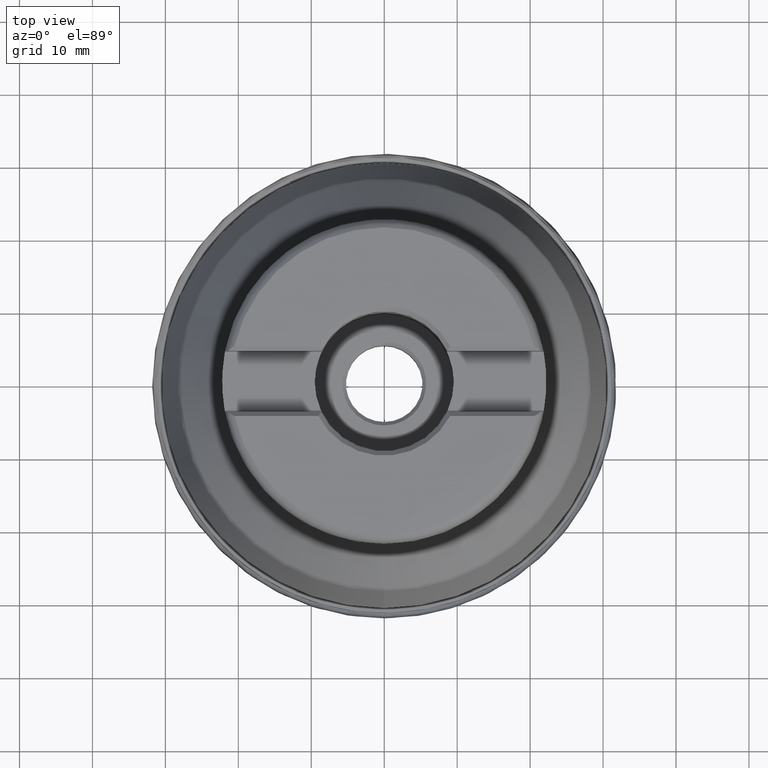
[diagram: clean part render]
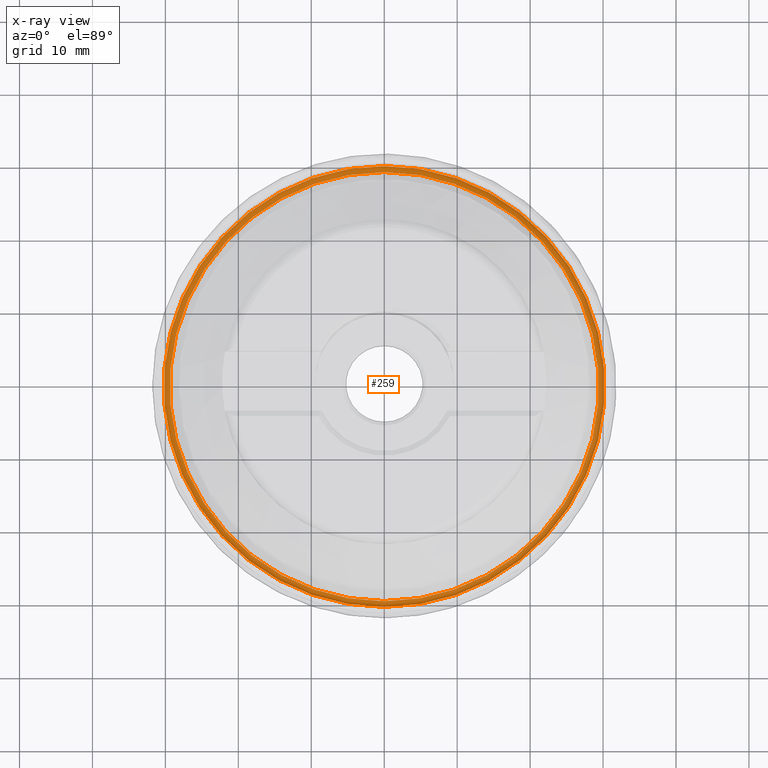
[diagram: x-ray — body ghosted, one internal face saturated and labeled with its STEP entity id]
A machine part, top view, then the same camera in x-ray: the body is ghosted and one INTERNAL B-rep face — a face not visible from any outside direction — is saturated and labeled: STEP entity #259.
In plain terms, the highlighted toroidal blend (fillet) surface has major radius 29.4166 mm and minor (blend) radius 0.8 mm.
Its self-contained STEP definition (entity closure, byte-faithful):
#191=TOROIDAL_SURFACE('',#1235,29.4166265666421,0.8);
#259=ADVANCED_FACE('',(#406,#407),#191,.T.);
#406=FACE_BOUND('',#524,.T.);
#407=FACE_BOUND('',#525,.T.);
#524=EDGE_LOOP('',(#734));
#525=EDGE_LOOP('',(#735));
#734=ORIENTED_EDGE('',*,*,#956,.F.);
#735=ORIENTED_EDGE('',*,*,#954,.F.);
#856=VERTEX_POINT('',#2019);
#858=VERTEX_POINT('',#2024);
#954=EDGE_CURVE('',#856,#856,#1050,.T.);
#956=EDGE_CURVE('',#858,#858,#1052,.T.);
#1050=CIRCLE('',#1180,29.4166265666421);
#1052=CIRCLE('',#1183,30.2160077481036);
#1180=AXIS2_PLACEMENT_3D('',#2018,#1327,#1328);
#1183=AXIS2_PLACEMENT_3D('',#2023,#1333,#1334);
#1235=AXIS2_PLACEMENT_3D('',#2234,#1453,#1454);
#1327=DIRECTION('',(0.,-1.17145536458252E-15,-1.));
#1328=DIRECTION('',(0.,1.,-1.17204564591835E-15));
#1333=DIRECTION('',(0.,1.17145536458252E-15,1.));
#1334=DIRECTION('',(0.,1.,-1.16974390255926E-15));
#1453=DIRECTION('',(0.,-1.17145536458252E-15,-1.));
#1454=DIRECTION('',(0.,1.,-1.16971994689992E-15));
#2018=CARTESIAN_POINT('',(0.,1.17145536458252E-15,1.));
#2019=CARTESIAN_POINT('',(0.,29.4166265666421,0.999999999999966));
#2023=CARTESIAN_POINT('',(0.,2.07176576123762E-15,1.76854007747529));
#2024=CARTESIAN_POINT('',(0.,30.2160077481036,1.76854007747525));
#2234=CARTESIAN_POINT('',(0.,2.10861965624854E-15,1.8));